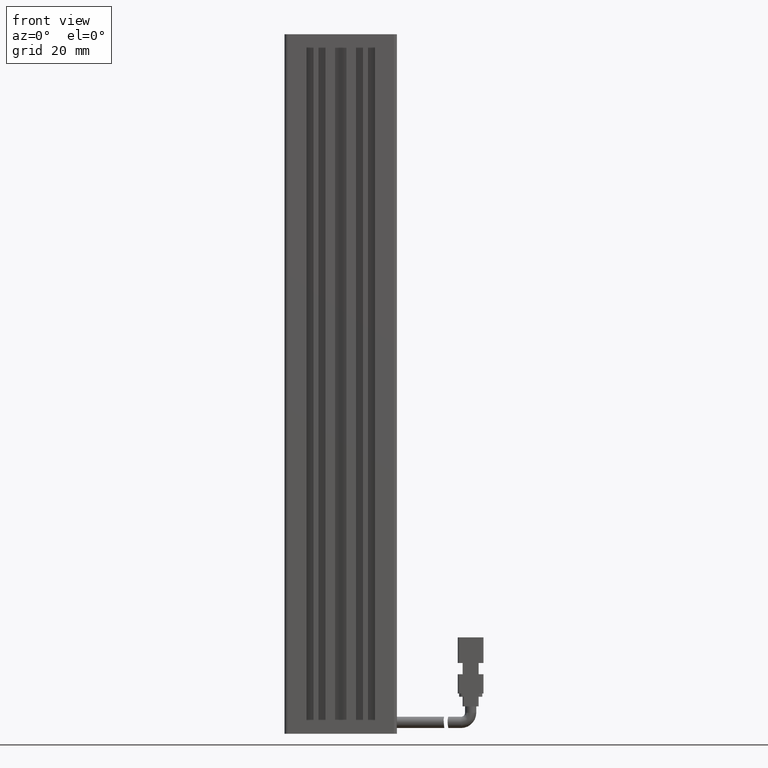
[diagram: clean part render]
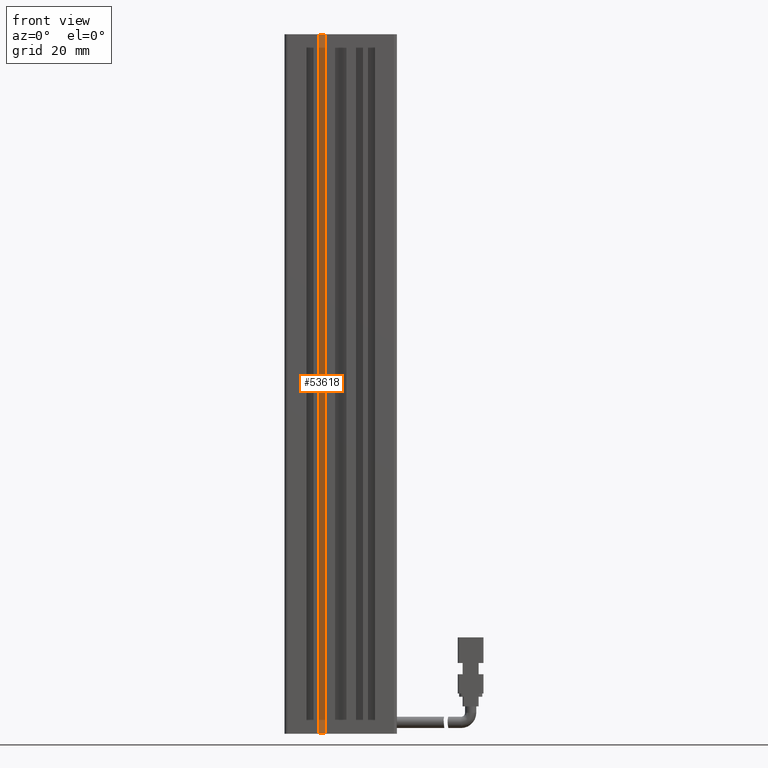
[diagram: same view with one face highlighted and labeled with its STEP entity id]
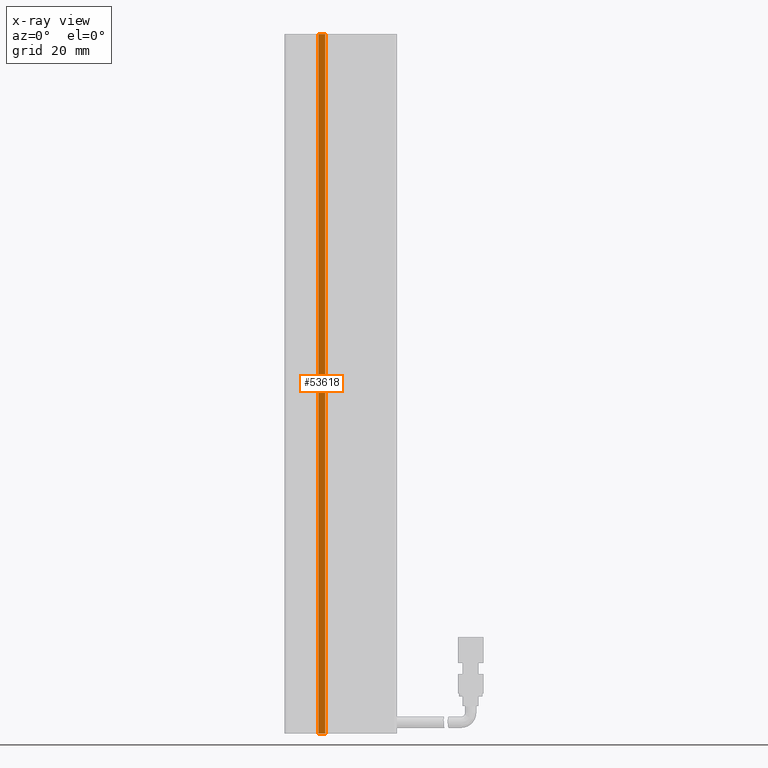
[diagram: x-ray of the same camera — body ghosted, the highlighted face saturated]
A machine part, front view. The second image highlights one B-rep face of the part: STEP entity #53618.
The next image is the same camera in x-ray: the body ghosted, the highlighted face saturated — about 0% of this face is hidden behind the body in this view.
In plain terms, the highlighted planar face has unit normal (-0, 1, 0).
Its self-contained STEP definition (entity closure, byte-faithful):
#17 = DIRECTION ( 'NONE',  ( -1.000000000000000000, -7.885106708985484100E-016, 0.0000000000000000000 ) ) ;
#344 = VERTEX_POINT ( 'NONE', #40579 ) ;
#1749 = VERTEX_POINT ( 'NONE', #35753 ) ;
#6877 = FACE_OUTER_BOUND ( 'NONE', #47905, .T. ) ;
#6952 = VERTEX_POINT ( 'NONE', #63060 ) ;
#7160 = LINE ( 'NONE', #43674, #53921 ) ;
#9283 = LINE ( 'NONE', #63262, #70614 ) ;
#16343 = ORIENTED_EDGE ( 'NONE', *, *, #21060, .T. ) ;
#19382 = CARTESIAN_POINT ( 'NONE',  ( 40.92537974683541800, 16.49073232304837300, -6.000000000000005300 ) ) ;
#19561 = VECTOR ( 'NONE', #89323, 1000.000000000000000 ) ;
#19622 = CARTESIAN_POINT ( 'NONE',  ( 33.92537974683543200, 16.49073232304837000, -6.000000000000005300 ) ) ;
#20006 = PLANE ( 'NONE',  #67649 ) ;
#21028 = VERTEX_POINT ( 'NONE', #19622 ) ;
#21060 = EDGE_CURVE ( 'NONE', #344, #6952, #9283, .T. ) ;
#27936 = VECTOR ( 'NONE', #31034, 1000.000000000000000 ) ;
#28460 = DIRECTION ( 'NONE',  ( 1.000000000000000000, 0.0000000000000000000, 0.0000000000000000000 ) ) ;
#31034 = DIRECTION ( 'NONE',  ( 0.0000000000000000000, 0.0000000000000000000, 1.000000000000000000 ) ) ;
#32755 = EDGE_CURVE ( 'NONE', #344, #21028, #81524, .T. ) ;
#33743 = CARTESIAN_POINT ( 'NONE',  ( 36.12537974683543500, 16.49073232304837000, -6.000000000000005300 ) ) ;
#35753 = CARTESIAN_POINT ( 'NONE',  ( 36.12537974683543500, 16.49073232304837000, -6.000000000000005300 ) ) ;
#38140 = LINE ( 'NONE', #33743, #19561 ) ;
#40579 = CARTESIAN_POINT ( 'NONE',  ( 33.92537974683543200, 16.49073232304837000, -224.0000000000000000 ) ) ;
#43048 = DIRECTION ( 'NONE',  ( 1.000000000000000000, 0.0000000000000000000, 0.0000000000000000000 ) ) ;
#43674 = CARTESIAN_POINT ( 'NONE',  ( 40.92537974683542500, 16.49073232304836600, -6.000000000000005300 ) ) ;
#47905 = EDGE_LOOP ( 'NONE', ( #64276, #49655, #76156, #16343 ) ) ;
#49655 = ORIENTED_EDGE ( 'NONE', *, *, #83427, .F. ) ;
#53618 = ADVANCED_FACE ( 'NONE', ( #6877 ), #20006, .F. ) ;
#53921 = VECTOR ( 'NONE', #43048, 1000.000000000000000 ) ;
#56053 = EDGE_CURVE ( 'NONE', #1749, #6952, #38140, .T. ) ;
#57177 = DIRECTION ( 'NONE',  ( -7.885106708985484100E-016, 1.000000000000000000, 0.0000000000000000000 ) ) ;
#63060 = CARTESIAN_POINT ( 'NONE',  ( 36.12537974683543500, 16.49073232304837000, -224.0000000000000000 ) ) ;
#63262 = CARTESIAN_POINT ( 'NONE',  ( 40.92537974683542500, 16.49073232304836600, -224.0000000000000000 ) ) ;
#64276 = ORIENTED_EDGE ( 'NONE', *, *, #56053, .F. ) ;
#67649 = AXIS2_PLACEMENT_3D ( 'NONE', #19382, #57177, #17 ) ;
#70614 = VECTOR ( 'NONE', #28460, 1000.000000000000000 ) ;
#73235 = CARTESIAN_POINT ( 'NONE',  ( 33.92537974683543200, 16.49073232304837000, -6.000000000000005300 ) ) ;
#76156 = ORIENTED_EDGE ( 'NONE', *, *, #32755, .F. ) ;
#81524 = LINE ( 'NONE', #73235, #27936 ) ;
#83427 = EDGE_CURVE ( 'NONE', #21028, #1749, #7160, .T. ) ;
#89323 = DIRECTION ( 'NONE',  ( -0.0000000000000000000, -0.0000000000000000000, -1.000000000000000000 ) ) ;